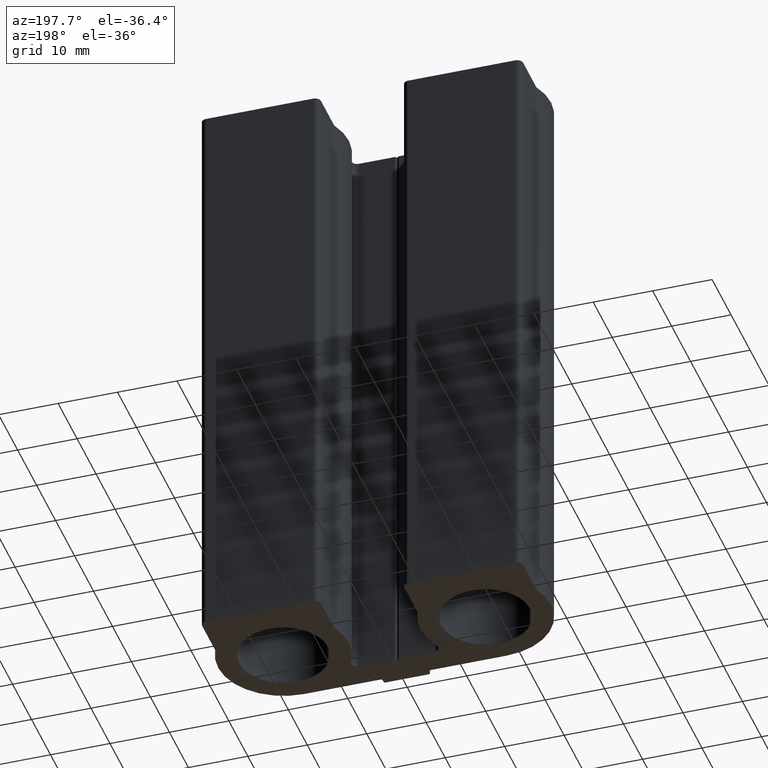
[diagram: clean part render]
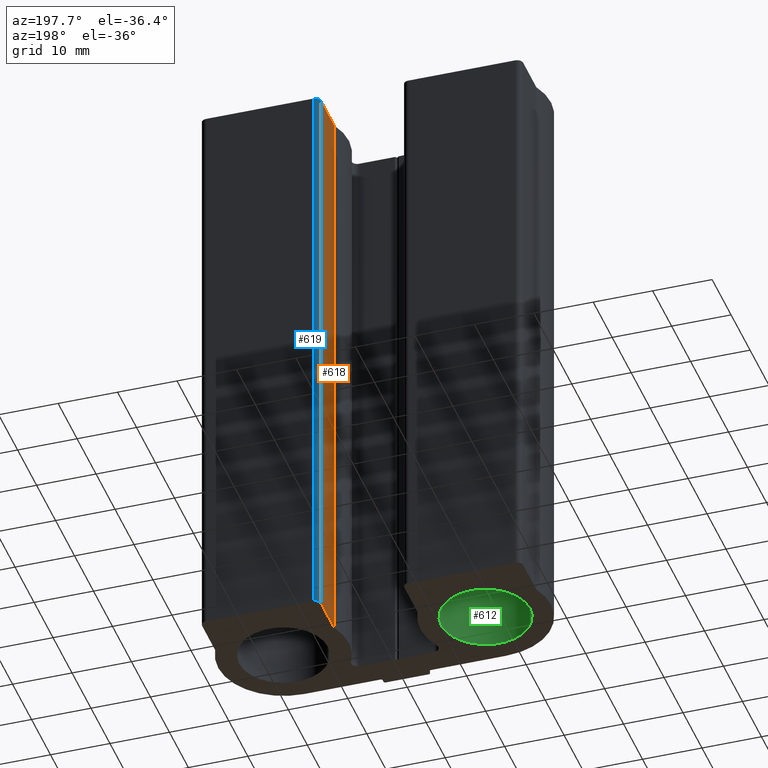
[diagram: same view with three faces highlighted in distinct colors, each labeled with its STEP entity id]
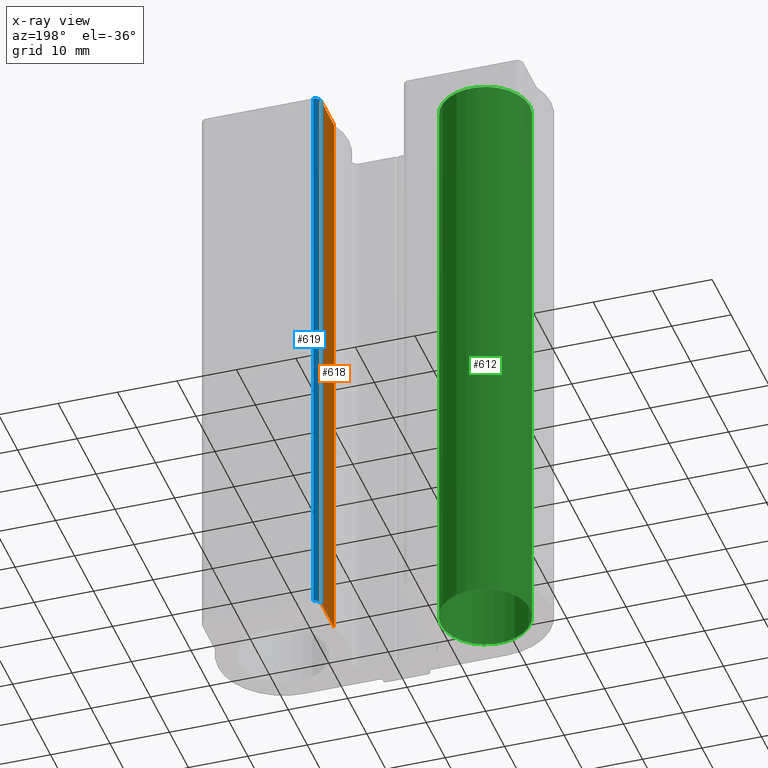
[diagram: x-ray of the same camera — body ghosted, the three highlighted faces saturated]
A machine part, auxiliary view with three faces highlighted in distinct colors.
The next image is the same camera in x-ray (body ghosted, the three faces saturated) — at least one of them is partly hidden behind the body in this view.
Their STEP definitions:

[orange] entity #618 — the highlighted planar face has unit normal (-1, -0, 0).
#26=LINE('',#945,#85);
#27=LINE('',#948,#86);
#28=LINE('',#950,#87);
#29=LINE('',#951,#88);
#85=VECTOR('',#754,100.);
#86=VECTOR('',#757,6.91739797517743);
#87=VECTOR('',#758,6.91739797517743);
#88=VECTOR('',#759,100.);
#136=PLANE('',#661);
#163=FACE_OUTER_BOUND('',#198,.T.);
#198=EDGE_LOOP('',(#437,#438,#439,#440));
#274=VERTEX_POINT('',#941);
#275=VERTEX_POINT('',#943);
#276=VERTEX_POINT('',#947);
#277=VERTEX_POINT('',#949);
#341=EDGE_CURVE('',#274,#275,#26,.T.);
#342=EDGE_CURVE('',#274,#276,#27,.T.);
#343=EDGE_CURVE('',#277,#275,#28,.T.);
#344=EDGE_CURVE('',#276,#277,#29,.T.);
#437=ORIENTED_EDGE('',*,*,#342,.F.);
#438=ORIENTED_EDGE('',*,*,#341,.T.);
#439=ORIENTED_EDGE('',*,*,#343,.F.);
#440=ORIENTED_EDGE('',*,*,#344,.F.);
#618=ADVANCED_FACE('',(#163),#136,.T.);
#661=AXIS2_PLACEMENT_3D('',#946,#755,#756);
#754=DIRECTION('',(0.,0.,1.));
#755=DIRECTION('center_axis',(-0.999999999999848,-5.52229663769142E-7,0.));
#756=DIRECTION('ref_axis',(5.52229663774995E-7,-0.999999999999848,0.));
#757=DIRECTION('',(-5.52229663769142E-7,0.999999999999847,0.));
#758=DIRECTION('',(5.52229663769142E-7,-0.999999999999847,0.));
#759=DIRECTION('',(0.,0.,1.));
#941=CARTESIAN_POINT('',(6.99998484337492,16.5825473948388,0.));
#943=CARTESIAN_POINT('',(6.99998484337492,16.5825473948388,100.));
#945=CARTESIAN_POINT('',(6.99998484337492,16.5825473948388,0.));
#946=CARTESIAN_POINT('Origin',(6.99998102338256,23.4999453700152,0.));
#947=CARTESIAN_POINT('',(6.99998102338256,23.4999453700152,0.));
#948=CARTESIAN_POINT('',(6.99998484337492,16.5825473948388,0.));
#949=CARTESIAN_POINT('',(6.99998102338256,23.4999453700152,100.));
#950=CARTESIAN_POINT('',(6.99998484337492,16.5825473948388,100.));
#951=CARTESIAN_POINT('',(6.99998102338256,23.4999453700152,0.));

[blue] entity #619 — the highlighted cylindrical surface (edge-blend (fillet) strip) has radius 1 mm, axis along (0, 0, 1).
#29=LINE('',#951,#88);
#30=LINE('',#957,#89);
#88=VECTOR('',#759,100.);
#89=VECTOR('',#766,100.);
#164=FACE_OUTER_BOUND('',#199,.T.);
#199=EDGE_LOOP('',(#441,#442,#443,#444));
#236=CIRCLE('',#663,0.99999609210157);
#237=CIRCLE('',#664,0.99999609210157);
#276=VERTEX_POINT('',#947);
#277=VERTEX_POINT('',#949);
#278=VERTEX_POINT('',#953);
#279=VERTEX_POINT('',#955);
#344=EDGE_CURVE('',#276,#277,#29,.T.);
#345=EDGE_CURVE('',#276,#278,#236,.T.);
#346=EDGE_CURVE('',#279,#277,#237,.T.);
#347=EDGE_CURVE('',#278,#279,#30,.T.);
#441=ORIENTED_EDGE('',*,*,#345,.F.);
#442=ORIENTED_EDGE('',*,*,#344,.T.);
#443=ORIENTED_EDGE('',*,*,#346,.F.);
#444=ORIENTED_EDGE('',*,*,#347,.F.);
#599=CYLINDRICAL_SURFACE('',#662,0.99999609210157);
#619=ADVANCED_FACE('',(#164),#599,.T.);
#662=AXIS2_PLACEMENT_3D('',#952,#760,#761);
#663=AXIS2_PLACEMENT_3D('',#954,#762,#763);
#664=AXIS2_PLACEMENT_3D('',#956,#764,#765);
#759=DIRECTION('',(0.,0.,1.));
#760=DIRECTION('center_axis',(0.,0.,1.));
#761=DIRECTION('ref_axis',(-1.90790771146953E-6,-0.99999999999818,0.));
#762=DIRECTION('center_axis',(0.,0.,-1.));
#763=DIRECTION('ref_axis',(-1.90790771146953E-6,-0.99999999999818,0.));
#764=DIRECTION('center_axis',(0.,0.,1.));
#765=DIRECTION('ref_axis',(-1.90790771146953E-6,-0.99999999999818,0.));
#766=DIRECTION('',(0.,0.,1.));
#947=CARTESIAN_POINT('',(6.99998102338256,23.4999453700152,0.));
#949=CARTESIAN_POINT('',(6.99998102338256,23.4999453700152,100.));
#951=CARTESIAN_POINT('',(6.99998102338256,23.4999453700152,0.));
#952=CARTESIAN_POINT('Origin',(7.99997711548231,23.4999472779155,0.));
#953=CARTESIAN_POINT('',(7.99997902338256,24.4999433700152,0.));
#954=CARTESIAN_POINT('Origin',(7.99997711548231,23.4999472779155,0.));
#955=CARTESIAN_POINT('',(7.99997902338256,24.4999433700152,100.));
#956=CARTESIAN_POINT('Origin',(7.99997711548231,23.4999472779155,100.));
#957=CARTESIAN_POINT('',(7.99997902338256,24.4999433700152,0.));

[green] entity #612 — the highlighted cylindrical surface (bore or boss wall) has radius 7.475 mm, axis along (0, 0, 1).
#151=FACE_BOUND('',#192,.T.);
#157=FACE_OUTER_BOUND('',#191,.T.);
#191=EDGE_LOOP('',(#415));
#192=EDGE_LOOP('',(#416));
#230=CIRCLE('',#650,7.47498733999542);
#231=CIRCLE('',#651,7.47498733999542);
#262=VERTEX_POINT('',#909);
#263=VERTEX_POINT('',#911);
#324=EDGE_CURVE('',#262,#262,#230,.T.);
#325=EDGE_CURVE('',#263,#263,#231,.T.);
#415=ORIENTED_EDGE('',*,*,#324,.F.);
#416=ORIENTED_EDGE('',*,*,#325,.F.);
#596=CYLINDRICAL_SURFACE('',#649,7.47498733999542);
#612=ADVANCED_FACE('',(#157,#151),#596,.F.);
#649=AXIS2_PLACEMENT_3D('',#908,#719,#720);
#650=AXIS2_PLACEMENT_3D('',#910,#721,#722);
#651=AXIS2_PLACEMENT_3D('',#912,#723,#724);
#719=DIRECTION('center_axis',(0.,0.,1.));
#720=DIRECTION('ref_axis',(-1.,0.,0.));
#721=DIRECTION('center_axis',(0.,0.,-1.));
#722=DIRECTION('ref_axis',(-1.,0.,0.));
#723=DIRECTION('center_axis',(0.,0.,1.));
#724=DIRECTION('ref_axis',(-1.,0.,0.));
#908=CARTESIAN_POINT('Origin',(-16.9999638500043,11.9999892699735,0.));
#909=CARTESIAN_POINT('',(-9.52497651000888,11.9999892699735,100.));
#910=CARTESIAN_POINT('Origin',(-16.9999638500043,11.9999892699735,100.));
#911=CARTESIAN_POINT('',(-9.52497651000888,11.9999892699735,0.));
#912=CARTESIAN_POINT('Origin',(-16.9999638500043,11.9999892699735,0.));